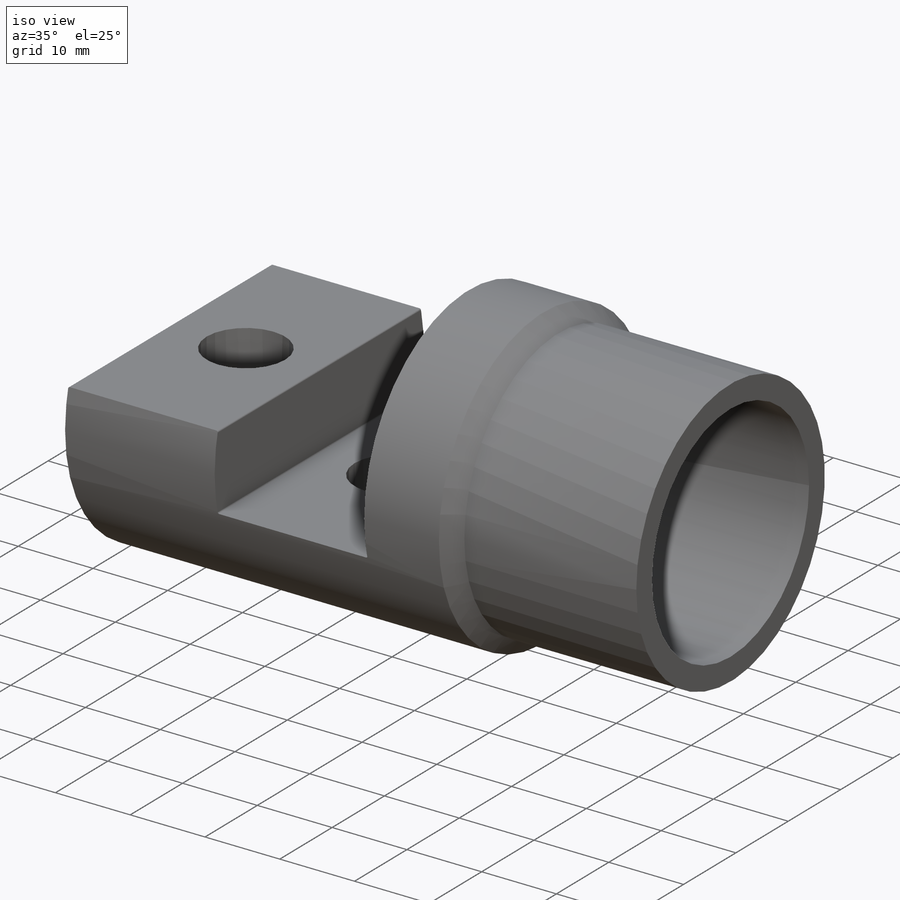
[diagram: iso view]
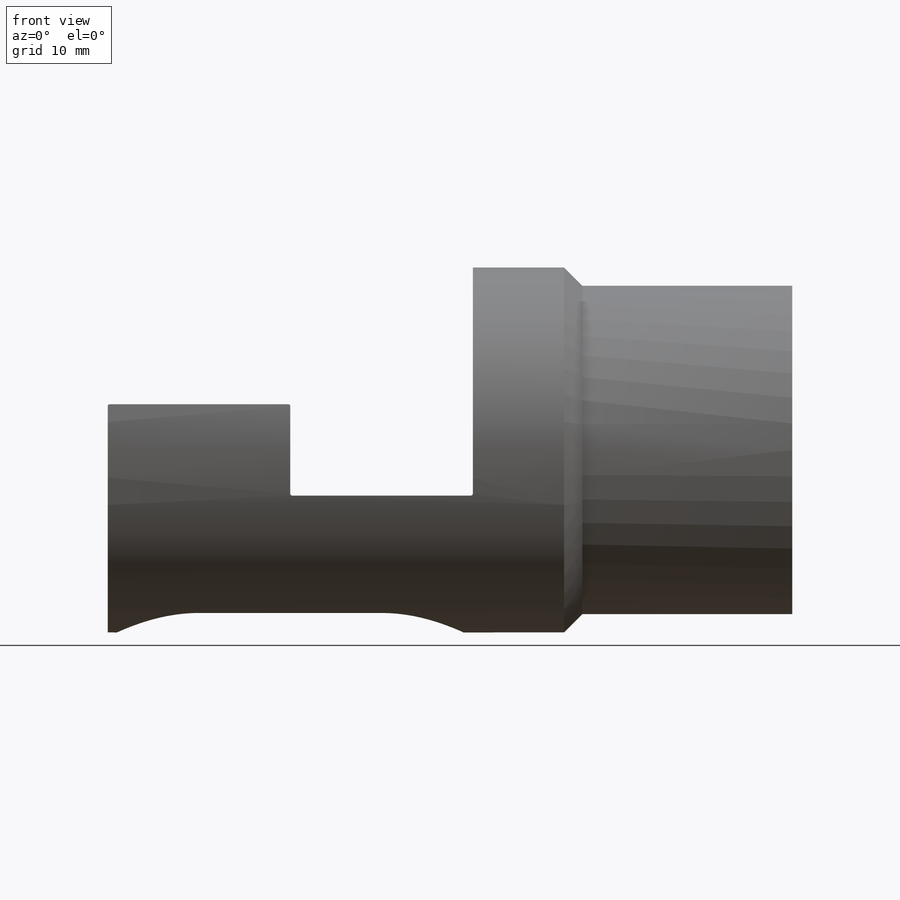
[diagram: front view]
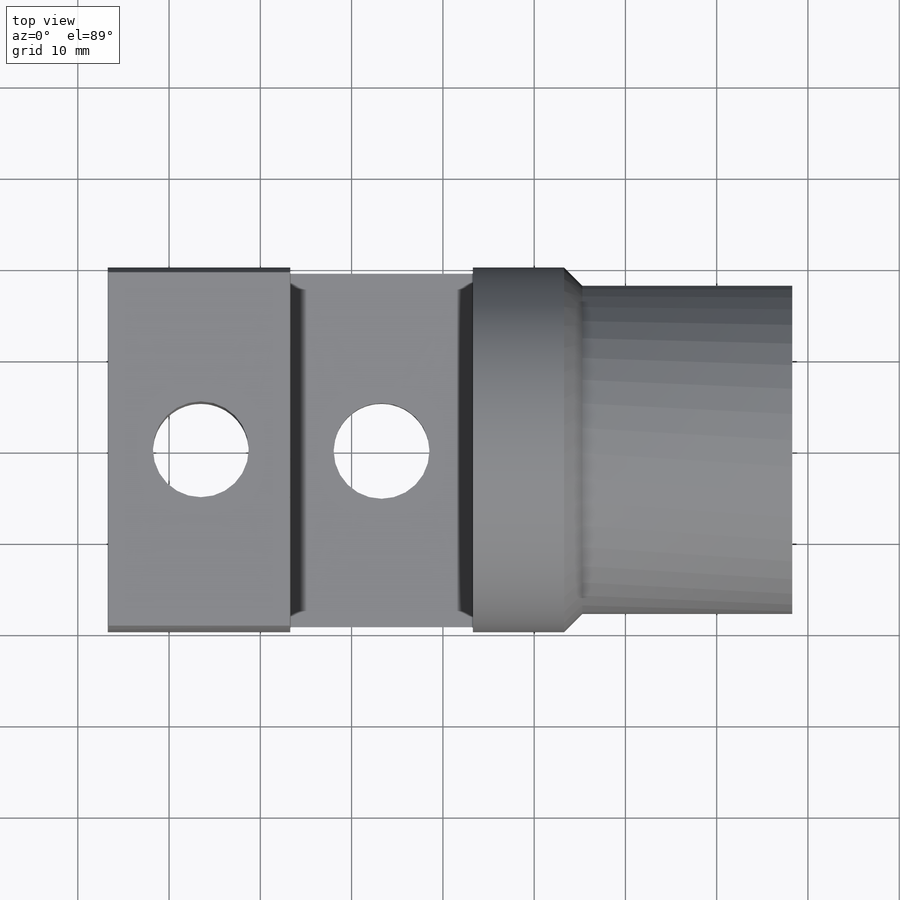
[diagram: top view]
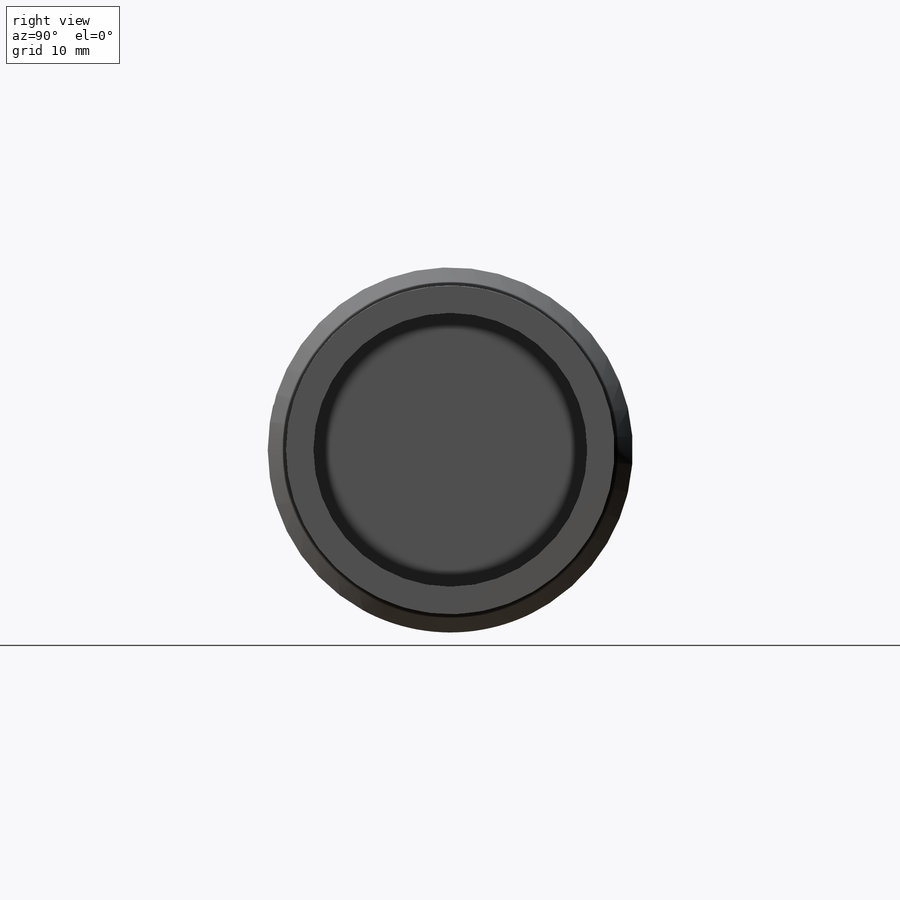
[diagram: right view]
SOLIDWORKS PART (.sldprt)
format: sldprt  version: not decoded by parser v0  size: 273,920 bytes
history: native  units: mm
features: sketch x5, cut_extrude x4, plane x3, material x1, revolve x1, chamfer x1, fillet x1 (+9 scaffold rows collapsed)
feature tree (25):
  scaffold x9  (default folders/planes/origin — collapsed)
  material  "Matériau <non spécifié>"
  plane  "Plan de face"
  plane  "Plan de dessus"
  plane  "Plan de droite"
  sketch  "Esquisse1"  dims[D1=75.0mm D2=50.0mm D3=2.0mm D4=18.0mm]
  revolve  "Révolution1"  Angle=360deg
  sketch  "Esquisse2"  dims[c1.D1=20.0mm c1.D2=20.0mm c1.D3=~18.484792mm c1.D4=25.0mm c1.D5=~6.515208mm c2.D3=15.0mm c2.D4=25.0mm c2.D5=0.0mm]
  cut_extrude  "Enlèv. mat.-Extru.4"  Depth=40mm
  chamfer  "Chanfrein1"  Distance=2mm Angle=45deg
  fillet  "Congé2"  Radius=0.2mm
  sketch  "Esquisse8"  dims[D1=10.0mm D2=10.0mm D3=18.0mm D4=20.0mm]
  cut_extrude  "Enlèv. mat.-Extru.30"  Depth=8mm
  sketch  "Esquisse9"  dims[c1.D5=10.5mm c1.D6=10.5mm c1.D1=10.0mm c1.D2=19.4mm c1.D3=19.4mm c1.D4=~21.369516mm c2.D4=90.0deg c3.D4=10.0mm]
  cut_extrude  "Enlèv. mat.-Extru.31"  [1 undecoded]
  sketch  "Esquisse10"  dims[c1.D2=30.0mm c1.D3=36.0mm c1.D1=0.0mm c2.D3=3.0mm]
  cut_extrude  "Enlèv. mat.-Extru.32"  Depth=51.7mm
decode coverage: 11 of 12 modeling features carry decoded parameters
note: ~ marks probable driven/reference dimensions
note: 1 parameter value undecoded
note: suppression state not decoded; provenance and decode notes live in map.json
